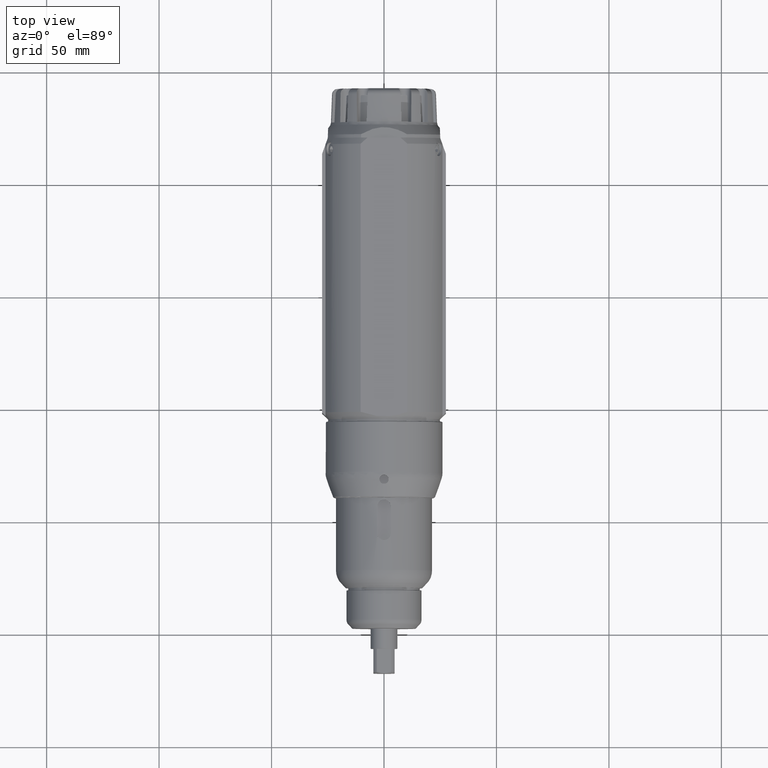
[diagram: clean part render]
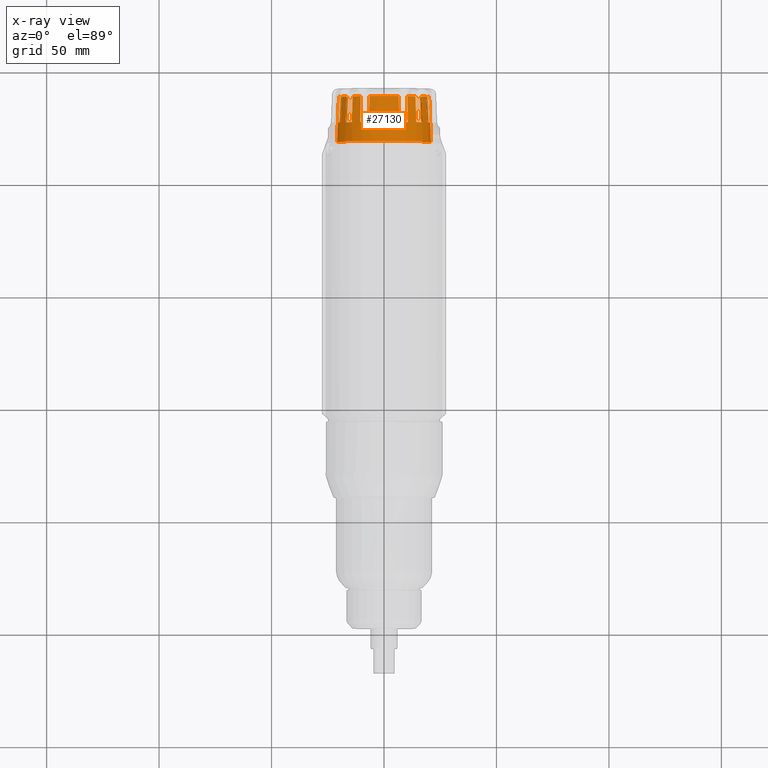
[diagram: x-ray — body ghosted, one internal face saturated and labeled with its STEP entity id]
A machine part, top view, then the same camera in x-ray: the body is ghosted and one INTERNAL B-rep face — a face not visible from any outside direction — is saturated and labeled: STEP entity #27130.
In plain terms, the highlighted conical surface has half-angle 2.793 deg.
Its self-contained STEP definition (entity closure, byte-faithful):
#218=CONICAL_SURFACE('',#29174,20.5,0.048741851309931);
#896=CIRCLE('',#29030,20.5853658536585);
#965=CIRCLE('',#29142,20.5853658536585);
#971=CIRCLE('',#29150,20.5853658536585);
#973=CIRCLE('',#29153,20.5853658536585);
#975=CIRCLE('',#29156,20.5853658536585);
#977=CIRCLE('',#29159,20.5853658536585);
#979=CIRCLE('',#29162,20.5853658536585);
#981=CIRCLE('',#29165,20.5853658536585);
#985=CIRCLE('',#29173,21.);
#986=CIRCLE('',#29175,20.0232018889338);
#987=CIRCLE('',#29176,20.0232018889338);
#988=CIRCLE('',#29177,20.0232018889338);
#989=CIRCLE('',#29178,20.0232018889338);
#990=CIRCLE('',#29179,20.0232018889338);
#991=CIRCLE('',#29180,20.0232018889338);
#992=CIRCLE('',#29181,20.0232018889338);
#993=CIRCLE('',#29182,20.0232018889338);
#994=CIRCLE('',#29183,20.0232018889338);
#3339=FACE_OUTER_BOUND('',#4885,.T.);
#4885=EDGE_LOOP('',(#21227,#21228,#21229,#21230,#21231,#21232,#21233,#21234,
#21235,#21236,#21237,#21238,#21239,#21240,#21241,#21242,#21243,#21244,#21245,
#21246,#21247,#21248,#21249,#21250,#21251,#21252,#21253,#21254,#21255,#21256,
#21257,#21258,#21259,#21260,#21261,#21262));
#6415=B_SPLINE_CURVE_WITH_KNOTS('',3,(#68478,#68479,#68480,#68481),
 .UNSPECIFIED.,.F.,.F.,(4,4),(0.943768406420819,2.01093758337189),
 .UNSPECIFIED.);
#6418=B_SPLINE_CURVE_WITH_KNOTS('',3,(#68504,#68505,#68506,#68507),
 .UNSPECIFIED.,.F.,.F.,(4,4),(0.992788858629909,2.05995797413426),
 .UNSPECIFIED.);
#6444=B_SPLINE_CURVE_WITH_KNOTS('',3,(#68798,#68799,#68800,#68801),
 .UNSPECIFIED.,.F.,.F.,(4,4),(0.943768406420819,2.01093758337189),
 .UNSPECIFIED.);
#6445=B_SPLINE_CURVE_WITH_KNOTS('',3,(#68809,#68810,#68811,#68812),
 .UNSPECIFIED.,.F.,.F.,(4,4),(0.992788858629908,2.05995797413427),
 .UNSPECIFIED.);
#6450=B_SPLINE_CURVE_WITH_KNOTS('',3,(#68861,#68862,#68863,#68864),
 .UNSPECIFIED.,.F.,.F.,(4,4),(0.94376840642082,2.01093758337189),
 .UNSPECIFIED.);
#6451=B_SPLINE_CURVE_WITH_KNOTS('',3,(#68872,#68873,#68874,#68875),
 .UNSPECIFIED.,.F.,.F.,(4,4),(0.992788858629908,2.05995797413427),
 .UNSPECIFIED.);
#6457=B_SPLINE_CURVE_WITH_KNOTS('',3,(#68938,#68939,#68940,#68941),
 .UNSPECIFIED.,.F.,.F.,(4,4),(0.943768406420821,2.01093758337189),
 .UNSPECIFIED.);
#6459=B_SPLINE_CURVE_WITH_KNOTS('',3,(#68956,#68957,#68958,#68959),
 .UNSPECIFIED.,.F.,.F.,(4,4),(0.992788858629908,2.05995797413427),
 .UNSPECIFIED.);
#6473=B_SPLINE_CURVE_WITH_KNOTS('',3,(#69116,#69117,#69118,#69119),
 .UNSPECIFIED.,.F.,.F.,(4,4),(0.943768406420819,2.01093758337189),
 .UNSPECIFIED.);
#6474=B_SPLINE_CURVE_WITH_KNOTS('',3,(#69125,#69126,#69127,#69128),
 .UNSPECIFIED.,.F.,.F.,(4,4),(0.992788858629909,2.05995797413426),
 .UNSPECIFIED.);
#6479=B_SPLINE_CURVE_WITH_KNOTS('',3,(#69179,#69180,#69181,#69182),
 .UNSPECIFIED.,.F.,.F.,(4,4),(0.943768406420819,2.01093758337189),
 .UNSPECIFIED.);
#6480=B_SPLINE_CURVE_WITH_KNOTS('',3,(#69188,#69189,#69190,#69191),
 .UNSPECIFIED.,.F.,.F.,(4,4),(0.99278885862991,2.05995797413427),
 .UNSPECIFIED.);
#6485=B_SPLINE_CURVE_WITH_KNOTS('',3,(#69242,#69243,#69244,#69245),
 .UNSPECIFIED.,.F.,.F.,(4,4),(0.943768406420818,2.01093758337189),
 .UNSPECIFIED.);
#6486=B_SPLINE_CURVE_WITH_KNOTS('',3,(#69251,#69252,#69253,#69254),
 .UNSPECIFIED.,.F.,.F.,(4,4),(0.99278885862991,2.05995797413427),
 .UNSPECIFIED.);
#6494=B_SPLINE_CURVE_WITH_KNOTS('',3,(#69408,#69409,#69410,#69411),
 .UNSPECIFIED.,.F.,.F.,(4,4),(0.943768406420819,2.01093758337189),
 .UNSPECIFIED.);
#6495=B_SPLINE_CURVE_WITH_KNOTS('',3,(#69413,#69414,#69415,#69416),
 .UNSPECIFIED.,.F.,.F.,(4,4),(0.992788858629908,2.05995797413427),
 .UNSPECIFIED.);
#6506=B_SPLINE_CURVE_WITH_KNOTS('',3,(#69527,#69528,#69529,#69530),
 .UNSPECIFIED.,.F.,.F.,(4,4),(-2.30342095766954,-0.298345857987503),
 .UNSPECIFIED.);
#6507=B_SPLINE_CURVE_WITH_KNOTS('',3,(#69532,#69533,#69534,#69535),
 .UNSPECIFIED.,.F.,.F.,(4,4),(-2.25540373389148,-0.250328634209449),
 .UNSPECIFIED.);
#11553=VERTEX_POINT('',#68476);
#11554=VERTEX_POINT('',#68477);
#11559=VERTEX_POINT('',#68501);
#11560=VERTEX_POINT('',#68503);
#11576=VERTEX_POINT('',#68597);
#11577=VERTEX_POINT('',#68598);
#11611=VERTEX_POINT('',#68796);
#11612=VERTEX_POINT('',#68797);
#11614=VERTEX_POINT('',#68806);
#11615=VERTEX_POINT('',#68808);
#11623=VERTEX_POINT('',#68859);
#11624=VERTEX_POINT('',#68860);
#11626=VERTEX_POINT('',#68869);
#11627=VERTEX_POINT('',#68871);
#11638=VERTEX_POINT('',#68936);
#11639=VERTEX_POINT('',#68937);
#11642=VERTEX_POINT('',#68953);
#11643=VERTEX_POINT('',#68955);
#11669=VERTEX_POINT('',#69114);
#11670=VERTEX_POINT('',#69115);
#11671=VERTEX_POINT('',#69122);
#11672=VERTEX_POINT('',#69124);
#11681=VERTEX_POINT('',#69177);
#11682=VERTEX_POINT('',#69178);
#11683=VERTEX_POINT('',#69185);
#11684=VERTEX_POINT('',#69187);
#11693=VERTEX_POINT('',#69240);
#11694=VERTEX_POINT('',#69241);
#11695=VERTEX_POINT('',#69248);
#11696=VERTEX_POINT('',#69250);
#11722=VERTEX_POINT('',#69378);
#11726=VERTEX_POINT('',#69395);
#11739=VERTEX_POINT('',#69512);
#11740=VERTEX_POINT('',#69517);
#11741=VERTEX_POINT('',#69525);
#11742=VERTEX_POINT('',#69531);
#14893=EDGE_CURVE('',#11553,#11554,#6415,.T.);
#14900=EDGE_CURVE('',#11560,#11559,#6418,.T.);
#14919=EDGE_CURVE('',#11576,#11577,#896,.T.);
#14963=EDGE_CURVE('',#11611,#11612,#6444,.T.);
#14968=EDGE_CURVE('',#11615,#11614,#6445,.T.);
#14979=EDGE_CURVE('',#11623,#11624,#6450,.T.);
#14984=EDGE_CURVE('',#11627,#11626,#6451,.T.);
#14997=EDGE_CURVE('',#11638,#11639,#6457,.T.);
#15003=EDGE_CURVE('',#11643,#11642,#6459,.T.);
#15038=EDGE_CURVE('',#11669,#11670,#6473,.T.);
#15042=EDGE_CURVE('',#11672,#11671,#6474,.T.);
#15054=EDGE_CURVE('',#11681,#11682,#6479,.T.);
#15058=EDGE_CURVE('',#11684,#11683,#6480,.T.);
#15070=EDGE_CURVE('',#11693,#11694,#6485,.T.);
#15074=EDGE_CURVE('',#11696,#11695,#6486,.T.);
#15109=EDGE_CURVE('',#11553,#11559,#965,.T.);
#15116=EDGE_CURVE('',#11576,#11726,#6494,.T.);
#15118=EDGE_CURVE('',#11722,#11577,#6495,.T.);
#15119=EDGE_CURVE('',#11611,#11614,#971,.T.);
#15121=EDGE_CURVE('',#11623,#11626,#973,.T.);
#15123=EDGE_CURVE('',#11638,#11642,#975,.T.);
#15125=EDGE_CURVE('',#11669,#11671,#977,.T.);
#15127=EDGE_CURVE('',#11681,#11683,#979,.T.);
#15129=EDGE_CURVE('',#11693,#11695,#981,.T.);
#15148=EDGE_CURVE('',#11740,#11739,#985,.T.);
#15149=EDGE_CURVE('',#11722,#11612,#986,.T.);
#15150=EDGE_CURVE('',#11741,#11726,#987,.T.);
#15151=EDGE_CURVE('',#11739,#11741,#6506,.T.);
#15152=EDGE_CURVE('',#11742,#11740,#6507,.T.);
#15153=EDGE_CURVE('',#11560,#11742,#988,.T.);
#15154=EDGE_CURVE('',#11672,#11554,#989,.T.);
#15155=EDGE_CURVE('',#11684,#11670,#990,.T.);
#15156=EDGE_CURVE('',#11696,#11682,#991,.T.);
#15157=EDGE_CURVE('',#11643,#11694,#992,.T.);
#15158=EDGE_CURVE('',#11627,#11639,#993,.T.);
#15159=EDGE_CURVE('',#11615,#11624,#994,.T.);
#21227=ORIENTED_EDGE('',*,*,#15149,.F.);
#21228=ORIENTED_EDGE('',*,*,#15118,.T.);
#21229=ORIENTED_EDGE('',*,*,#14919,.F.);
#21230=ORIENTED_EDGE('',*,*,#15116,.T.);
#21231=ORIENTED_EDGE('',*,*,#15150,.F.);
#21232=ORIENTED_EDGE('',*,*,#15151,.F.);
#21233=ORIENTED_EDGE('',*,*,#15148,.F.);
#21234=ORIENTED_EDGE('',*,*,#15152,.F.);
#21235=ORIENTED_EDGE('',*,*,#15153,.F.);
#21236=ORIENTED_EDGE('',*,*,#14900,.T.);
#21237=ORIENTED_EDGE('',*,*,#15109,.F.);
#21238=ORIENTED_EDGE('',*,*,#14893,.T.);
#21239=ORIENTED_EDGE('',*,*,#15154,.F.);
#21240=ORIENTED_EDGE('',*,*,#15042,.T.);
#21241=ORIENTED_EDGE('',*,*,#15125,.F.);
#21242=ORIENTED_EDGE('',*,*,#15038,.T.);
#21243=ORIENTED_EDGE('',*,*,#15155,.F.);
#21244=ORIENTED_EDGE('',*,*,#15058,.T.);
#21245=ORIENTED_EDGE('',*,*,#15127,.F.);
#21246=ORIENTED_EDGE('',*,*,#15054,.T.);
#21247=ORIENTED_EDGE('',*,*,#15156,.F.);
#21248=ORIENTED_EDGE('',*,*,#15074,.T.);
#21249=ORIENTED_EDGE('',*,*,#15129,.F.);
#21250=ORIENTED_EDGE('',*,*,#15070,.T.);
#21251=ORIENTED_EDGE('',*,*,#15157,.F.);
#21252=ORIENTED_EDGE('',*,*,#15003,.T.);
#21253=ORIENTED_EDGE('',*,*,#15123,.F.);
#21254=ORIENTED_EDGE('',*,*,#14997,.T.);
#21255=ORIENTED_EDGE('',*,*,#15158,.F.);
#21256=ORIENTED_EDGE('',*,*,#14984,.T.);
#21257=ORIENTED_EDGE('',*,*,#15121,.F.);
#21258=ORIENTED_EDGE('',*,*,#14979,.T.);
#21259=ORIENTED_EDGE('',*,*,#15159,.F.);
#21260=ORIENTED_EDGE('',*,*,#14968,.T.);
#21261=ORIENTED_EDGE('',*,*,#15119,.F.);
#21262=ORIENTED_EDGE('',*,*,#14963,.T.);
#27130=ADVANCED_FACE('',(#3339),#218,.F.);
#29030=AXIS2_PLACEMENT_3D('',#68599,#33506,#33507);
#29142=AXIS2_PLACEMENT_3D('',#69374,#33766,#33767);
#29150=AXIS2_PLACEMENT_3D('',#69418,#33782,#33783);
#29153=AXIS2_PLACEMENT_3D('',#69421,#33788,#33789);
#29156=AXIS2_PLACEMENT_3D('',#69424,#33794,#33795);
#29159=AXIS2_PLACEMENT_3D('',#69427,#33800,#33801);
#29162=AXIS2_PLACEMENT_3D('',#69430,#33806,#33807);
#29165=AXIS2_PLACEMENT_3D('',#69433,#33812,#33813);
#29173=AXIS2_PLACEMENT_3D('',#69522,#33833,#33834);
#29174=AXIS2_PLACEMENT_3D('',#69523,#33835,#33836);
#29175=AXIS2_PLACEMENT_3D('',#69524,#33837,#33838);
#29176=AXIS2_PLACEMENT_3D('',#69526,#33839,#33840);
#29177=AXIS2_PLACEMENT_3D('',#69536,#33841,#33842);
#29178=AXIS2_PLACEMENT_3D('',#69537,#33843,#33844);
#29179=AXIS2_PLACEMENT_3D('',#69538,#33845,#33846);
#29180=AXIS2_PLACEMENT_3D('',#69539,#33847,#33848);
#29181=AXIS2_PLACEMENT_3D('',#69540,#33849,#33850);
#29182=AXIS2_PLACEMENT_3D('',#69541,#33851,#33852);
#29183=AXIS2_PLACEMENT_3D('',#69542,#33853,#33854);
#33506=DIRECTION('center_axis',(-2.85758308887634E-15,-1.,-2.35156584155881E-17));
#33507=DIRECTION('ref_axis',(-1.34548270429144E-14,-2.35171747994207E-17,
1.));
#33766=DIRECTION('center_axis',(-2.8563974840679E-15,-1.,4.39973992522287E-16));
#33767=DIRECTION('ref_axis',(-1.34548270429144E-14,-2.35171747994207E-17,
1.));
#33782=DIRECTION('center_axis',(-2.85747264778965E-15,-1.,-2.40168587322053E-17));
#33783=DIRECTION('ref_axis',(-1.34548270429144E-14,-2.35171747994207E-17,
1.));
#33788=DIRECTION('center_axis',(-2.85716073776618E-15,-1.,-2.44244260619401E-17));
#33789=DIRECTION('ref_axis',(-1.34548270429144E-14,-2.35171747994207E-17,
1.));
#33794=DIRECTION('center_axis',(-2.85670580588663E-15,-1.,-2.46619886346836E-17));
#33795=DIRECTION('ref_axis',(-1.34548270429144E-14,-2.35171747994207E-17,
1.));
#33800=DIRECTION('center_axis',(-2.66051765260221E-15,-1.,3.96548479366948E-16));
#33801=DIRECTION('ref_axis',(-1.34548270429144E-14,-2.35171747994207E-17,
1.));
#33806=DIRECTION('center_axis',(-2.50134265090635E-15,-1.,2.74409204754114E-16));
#33807=DIRECTION('ref_axis',(-1.34548270429144E-14,-2.35171747994207E-17,
1.));
#33812=DIRECTION('center_axis',(-2.40869939529495E-15,-1.,9.64431665402137E-17));
#33813=DIRECTION('ref_axis',(-1.34548270429144E-14,-2.35171747994207E-17,
1.));
#33833=DIRECTION('center_axis',(2.85639748406789E-15,1.,2.35171747994592E-17));
#33834=DIRECTION('ref_axis',(-1.34548270429144E-14,-2.35171747994207E-17,
1.));
#33835=DIRECTION('center_axis',(-2.85639748406789E-15,-1.,-2.35171747994592E-17));
#33836=DIRECTION('ref_axis',(-1.34548270429144E-14,-2.35171747994207E-17,
1.));
#33837=DIRECTION('center_axis',(-2.85639748406789E-15,-1.,-2.35171747994592E-17));
#33838=DIRECTION('ref_axis',(0.999156530905381,-2.85495390307605E-15,0.041063691372356));
#33839=DIRECTION('center_axis',(-2.85639748406789E-15,-1.,-2.35171747994592E-17));
#33840=DIRECTION('ref_axis',(0.894428461962616,-2.54432606790978E-15,-0.447211053565527));
#33841=DIRECTION('center_axis',(-2.85639748406789E-15,-1.,-2.35171747994592E-17));
#33842=DIRECTION('ref_axis',(-0.894999711101508,2.56696515201709E-15,-0.446066718247637));
#33843=DIRECTION('center_axis',(-2.85639748406789E-15,-1.,-2.35171747994592E-17));
#33844=DIRECTION('ref_axis',(-0.999048221581858,2.85265302183161E-15,0.0436193873653219));
#33845=DIRECTION('center_axis',(-2.85639748406789E-15,-1.,-2.35171747994592E-17));
#33846=DIRECTION('ref_axis',(-0.887010833178228,2.5227964893804E-15,0.461748613235021));
#33847=DIRECTION('center_axis',(-2.85639748406789E-15,-1.,-2.35171747994592E-17));
#33848=DIRECTION('ref_axis',(-0.608761429008732,1.72020718503675E-15,0.793353340291227));
#33849=DIRECTION('center_axis',(-2.85639748406789E-15,-1.,-2.35171747994592E-17));
#33850=DIRECTION('ref_axis',(0.00127899500761586,-2.71704736863114E-17,
0.999999182085551));
#33851=DIRECTION('center_axis',(-2.85639748406789E-15,-1.,-2.35171747994592E-17));
#33852=DIRECTION('ref_axis',(0.610788825613619,-1.76327641187251E-15,0.791793540328245));
#33853=DIRECTION('center_axis',(-2.85639748406789E-15,-1.,-2.35171747994592E-17));
#33854=DIRECTION('ref_axis',(0.888189078559631,-2.54782667709871E-15,0.459478139553336));
#68476=CARTESIAN_POINT('',(-20.5331825075601,225.,-1.46482198242746));
#68477=CARTESIAN_POINT('',(-19.9770456504191,236.524361270734,-1.35877186826806));
#68478=CARTESIAN_POINT('Ctrl Pts',(-20.5331825075601,225.,-1.46482198242746));
#68479=CARTESIAN_POINT('Ctrl Pts',(-20.3462547901495,228.900154850314,-1.41145379714631));
#68480=CARTESIAN_POINT('Ctrl Pts',(-20.1554165066676,232.851375875146,-1.37660762535145));
#68481=CARTESIAN_POINT('Ctrl Pts',(-19.9770456501225,236.524361270719,-1.3587718682384));
#68501=CARTESIAN_POINT('',(-19.7958787079808,225.,-5.64627961651611));
#68503=CARTESIAN_POINT('',(-19.2370097319339,236.524361270734,-5.55572411863717));
#68504=CARTESIAN_POINT('Ctrl Pts',(-19.237009731645,236.524361270719,-5.55572411856359));
#68505=CARTESIAN_POINT('Ctrl Pts',(-19.4107234733304,232.851380615125,-5.59997035803926));
#68506=CARTESIAN_POINT('Ctrl Pts',(-19.601971007847,228.900157044368,-5.63249625395533));
#68507=CARTESIAN_POINT('Ctrl Pts',(-19.7958787079808,225.,-5.64627961651611));
#68597=CARTESIAN_POINT('',(19.7813708275972,225.,-5.69689876248942));
#68598=CARTESIAN_POINT('',(20.5293683331003,225.,-1.51734082290855));
#68599=CARTESIAN_POINT('Origin',(-8.18999870464843E-14,225.,7.36267769599675E-14));
#68796=CARTESIAN_POINT('',(20.335623871627,225.,3.19682484360374));
#68797=CARTESIAN_POINT('',(19.7904537122881,236.524361270734,3.0441018003189));
#68798=CARTESIAN_POINT('Ctrl Pts',(20.335623871627,225.,3.19682484360374));
#68799=CARTESIAN_POINT('Ctrl Pts',(20.1538817384808,228.900154850314,3.12783258479155));
#68800=CARTESIAN_POINT('Ctrl Pts',(19.9666759652925,232.851375875146,3.07696506454506));
#68801=CARTESIAN_POINT('Ctrl Pts',(19.790453711995,236.524361270719,3.04410180026425));
#68806=CARTESIAN_POINT('',(19.2471823242783,225.,7.30090815617884));
#68808=CARTESIAN_POINT('',(18.6979788862132,236.524361270734,7.16339301446234));
#68809=CARTESIAN_POINT('Ctrl Pts',(18.6979788859316,236.524361270719,7.16339301436459));
#68810=CARTESIAN_POINT('Ctrl Pts',(18.8673262059448,232.851380615124,7.22217803764783));
#68811=CARTESIAN_POINT('Ctrl Pts',(19.0551360748038,228.900157044368,7.2707682272236));
#68812=CARTESIAN_POINT('Ctrl Pts',(19.2471823242783,225.,7.30090815617884));
#68859=CARTESIAN_POINT('',(17.0792977106107,225.,11.49151326159));
#68860=CARTESIAN_POINT('',(16.6497492970226,236.524361270734,11.1227003131083));
#68861=CARTESIAN_POINT('Ctrl Pts',(17.0792977106107,225.,11.49151326159));
#68862=CARTESIAN_POINT('Ctrl Pts',(16.9437407886004,228.900154850314,11.352177495788));
#68863=CARTESIAN_POINT('Ctrl Pts',(16.7955722815673,232.851375875146,11.2269592876287));
#68864=CARTESIAN_POINT('Ctrl Pts',(16.6497492967801,236.524361270719,11.1227003129349));
#68869=CARTESIAN_POINT('',(14.3583741049148,225.,14.7510806516771));
#68871=CARTESIAN_POINT('',(13.9187431624844,236.524361270734,14.3943462055669));
#68872=CARTESIAN_POINT('Ctrl Pts',(13.9187431622705,236.524361270719,14.3943462053593));
#68873=CARTESIAN_POINT('Ctrl Pts',(14.0473803327559,232.851380615124,14.5191927997365));
#68874=CARTESIAN_POINT('Ctrl Pts',(14.1970587779289,228.900157044368,14.6426023472375));
#68875=CARTESIAN_POINT('Ctrl Pts',(14.3583741049148,225.,14.7510806516771));
#68936=CARTESIAN_POINT('',(10.6225771528603,225.,17.6328710640242));
#68937=CARTESIAN_POINT('',(10.389141167911,236.524361270734,17.1170780129712));
#68938=CARTESIAN_POINT('Ctrl Pts',(10.6225771528603,225.,17.6328710640242));
#68939=CARTESIAN_POINT('Ctrl Pts',(10.5586066979973,228.900154850314,17.4493011437182));
#68940=CARTESIAN_POINT('Ctrl Pts',(10.4772399277501,232.851375875146,17.2731961896976));
#68941=CARTESIAN_POINT('Ctrl Pts',(10.3891411677645,236.524361270719,17.1170780127116));
#68953=CARTESIAN_POINT('',(6.77903019666104,225.,19.4371303674624));
#68955=CARTESIAN_POINT('',(6.53135174163222,236.524361270734,18.9280230963512));
#68956=CARTESIAN_POINT('Ctrl Pts',(6.53135174152609,236.524361270719,18.9280230960726));
#68957=CARTESIAN_POINT('Ctrl Pts',(6.59517416013946,232.851380615124,19.0955369541274));
#68958=CARTESIAN_POINT('Ctrl Pts',(6.67867377210424,228.900157044368,19.2706408323414));
#68959=CARTESIAN_POINT('Ctrl Pts',(6.77903019666104,225.,19.4371303674624));
#69114=CARTESIAN_POINT('',(-19.2284437192195,225.,7.35011833005309));
#69115=CARTESIAN_POINT('',(-18.6795938400311,236.524361270734,7.21119878247704));
#69116=CARTESIAN_POINT('Ctrl Pts',(-19.2284437192195,225.,7.35011833005308));
#69117=CARTESIAN_POINT('Ctrl Pts',(-19.0364753036215,228.900154850314,7.31948726495019));
#69118=CARTESIAN_POINT('Ctrl Pts',(-18.8487904526849,232.851375875146,7.27041687815759));
#69119=CARTESIAN_POINT('Ctrl Pts',(-18.6795938397498,236.524361270719,7.21119878237856));
#69122=CARTESIAN_POINT('',(-20.3273799011101,225.,3.24883266496168));
#69124=CARTESIAN_POINT('',(-19.7826021890808,236.524361270734,3.0947155826506));
#69125=CARTESIAN_POINT('Ctrl Pts',(-19.7826021887879,236.524361270719,3.0947155825952));
#69126=CARTESIAN_POINT('Ctrl Pts',(-19.9587395744084,232.851380615125,3.12802947076286));
#69127=CARTESIAN_POINT('Ctrl Pts',(-20.1458147417861,228.900157044368,3.1793756986134));
#69128=CARTESIAN_POINT('Ctrl Pts',(-20.3273799011101,225.,3.24883266496168));
#69177=CARTESIAN_POINT('',(-14.3205940430892,225.,14.7877609387633));
#69178=CARTESIAN_POINT('',(-13.881877061385,236.524361270734,14.4299030891244));
#69179=CARTESIAN_POINT('Ctrl Pts',(-14.3205940430892,225.,14.7877609387633));
#69180=CARTESIAN_POINT('Ctrl Pts',(-14.1595568206567,228.900154850314,14.6788704078262));
#69181=CARTESIAN_POINT('Ctrl Pts',(-14.0101946203133,232.851375875146,14.5550784887053));
#69182=CARTESIAN_POINT('Ctrl Pts',(-13.8818770611716,236.524361270719,14.4299030889162));
#69185=CARTESIAN_POINT('',(-17.0498466808759,225.,11.5351643025837));
#69187=CARTESIAN_POINT('',(-16.6212430916906,236.524361270734,11.165253781077));
#69188=CARTESIAN_POINT('Ctrl Pts',(-16.6212430914486,236.524361270719,11.165253780903));
#69189=CARTESIAN_POINT('Ctrl Pts',(-16.7667987181155,232.851380615125,11.2698852929043));
#69190=CARTESIAN_POINT('Ctrl Pts',(-16.9146465455099,228.900157044368,11.3954821610922));
#69191=CARTESIAN_POINT('Ctrl Pts',(-17.0498466808759,225.,11.5351643025837));
#69240=CARTESIAN_POINT('',(-6.72928807326525,225.,19.4544074532221));
#69241=CARTESIAN_POINT('',(-6.48291271880621,236.524361270734,18.9446682892382));
#69242=CARTESIAN_POINT('Ctrl Pts',(-6.72928807326525,225.,19.4544074532221));
#69243=CARTESIAN_POINT('Ctrl Pts',(-6.62935791147659,228.900154850314,19.2876618460793));
#69244=CARTESIAN_POINT('Ctrl Pts',(-6.54630651189284,232.851375875146,19.1123450723289));
#69245=CARTESIAN_POINT('Ctrl Pts',(-6.48291271870079,236.524361270719,18.9446682889594));
#69248=CARTESIAN_POINT('',(-10.5774377282075,225.,17.659985799396));
#69250=CARTESIAN_POINT('',(-10.3453218993758,236.524361270734,17.1435973094104));
#69251=CARTESIAN_POINT('Ctrl Pts',(-10.34532189923,236.524361270719,17.1435973091504));
#69252=CARTESIAN_POINT('Ctrl Pts',(-10.4330209093999,232.851380615125,17.2999401291751));
#69253=CARTESIAN_POINT('Ctrl Pts',(-10.5139370165503,228.900157044368,17.4762527406568));
#69254=CARTESIAN_POINT('Ctrl Pts',(-10.5774377282075,225.,17.659985799396));
#69374=CARTESIAN_POINT('Origin',(-8.18999870464843E-14,225.,7.36267769599675E-14));
#69378=CARTESIAN_POINT('',(19.9735045703594,236.524361270734,-1.40986846434458));
#69395=CARTESIAN_POINT('',(19.2227353198476,236.524361270734,-5.60491398078567));
#69408=CARTESIAN_POINT('Ctrl Pts',(19.7813708275972,225.,-5.69689876248942));
#69409=CARTESIAN_POINT('Ctrl Pts',(19.5874991286014,228.900154850314,-5.68261943950086));
#69410=CARTESIAN_POINT('Ctrl Pts',(19.396335535597,232.851375875146,-5.64960449075483));
#69411=CARTESIAN_POINT('Ctrl Pts',(19.2227353195589,236.524361270719,-5.60491398071136));
#69413=CARTESIAN_POINT('Ctrl Pts',(19.9735045700629,236.524361270719,-1.40986846431416));
#69414=CARTESIAN_POINT('Ctrl Pts',(20.151828989261,232.851380615124,-1.42816040996586));
#69415=CARTESIAN_POINT('Ctrl Pts',(20.3425776373464,228.900157044368,-1.46349462309469));
#69416=CARTESIAN_POINT('Ctrl Pts',(20.5293683331003,225.,-1.51734082290855));
#69418=CARTESIAN_POINT('Origin',(-8.18999870464843E-14,225.,7.36267769599675E-14));
#69421=CARTESIAN_POINT('Origin',(-8.18999870464843E-14,225.,7.36267769599675E-14));
#69424=CARTESIAN_POINT('Origin',(-8.18999870464843E-14,225.,7.36267769599675E-14));
#69427=CARTESIAN_POINT('Origin',(-8.18999870464843E-14,225.,7.36267769599675E-14));
#69430=CARTESIAN_POINT('Origin',(-8.18999870464843E-14,225.,7.36267769599675E-14));
#69433=CARTESIAN_POINT('Origin',(-8.18999870464843E-14,225.,7.36267769599675E-14));
#69512=CARTESIAN_POINT('',(16.9782152693494,216.500000000005,-12.3588108759542));
#69517=CARTESIAN_POINT('',(-16.9782152693493,216.500000000005,-12.3588108759546));
#69522=CARTESIAN_POINT('Origin',(-1.06179365661061E-13,216.5,7.34268809741721E-14));
#69523=CARTESIAN_POINT('Origin',(-7.69012914493654E-14,226.75,7.36679320158666E-14));
#69524=CARTESIAN_POINT('Origin',(-4.89818304897813E-14,236.524361276856,
7.28569632929814E-14));
#69525=CARTESIAN_POINT('',(16.0221593849127,236.524361276856,-12.0091224712488));
#69526=CARTESIAN_POINT('Origin',(-5.00920535144065E-14,236.524361276856,
7.27875743539423E-14));
#69527=CARTESIAN_POINT('Ctrl Pts',(16.9782152693499,216.5,-12.3588108759544));
#69528=CARTESIAN_POINT('Ctrl Pts',(16.6592415979944,223.174806984728,-12.2437509796722));
#69529=CARTESIAN_POINT('Ctrl Pts',(16.340543807387,229.849594710915,-12.1272256818116));
#69530=CARTESIAN_POINT('Ctrl Pts',(16.0221593849125,236.524361276856,-12.0091224712493));
#69531=CARTESIAN_POINT('',(-16.0221593849125,236.524361276856,-12.0091224712492));
#69532=CARTESIAN_POINT('Ctrl Pts',(-16.0221593849123,236.524361276856,-12.0091224712498));
#69533=CARTESIAN_POINT('Ctrl Pts',(-16.3405438073869,229.849594710915,-12.127225681812));
#69534=CARTESIAN_POINT('Ctrl Pts',(-16.6592415979942,223.174806984728,-12.2437509796727));
#69535=CARTESIAN_POINT('Ctrl Pts',(-16.9782152693498,216.5,-12.3588108759548));
#69536=CARTESIAN_POINT('Origin',(-4.89818304897814E-14,236.524361276856,
7.50080204031926E-14));
#69537=CARTESIAN_POINT('Origin',(-4.89818304897813E-14,236.524361276856,
7.29957411710595E-14));
#69538=CARTESIAN_POINT('Origin',(-4.89818304897814E-14,236.524361276856,
7.50080204031926E-14));
#69539=CARTESIAN_POINT('Origin',(-4.89818304897813E-14,236.524361276856,
7.27875743539423E-14));
#69540=CARTESIAN_POINT('Origin',(-4.89839988941263E-14,236.524361276856,
7.38977973785675E-14));
#69541=CARTESIAN_POINT('Origin',(-4.78716074651562E-14,236.524361276856,
7.38977973785675E-14));
#69542=CARTESIAN_POINT('Origin',(-4.89818304897813E-14,236.524361276856,
7.27875743539423E-14));